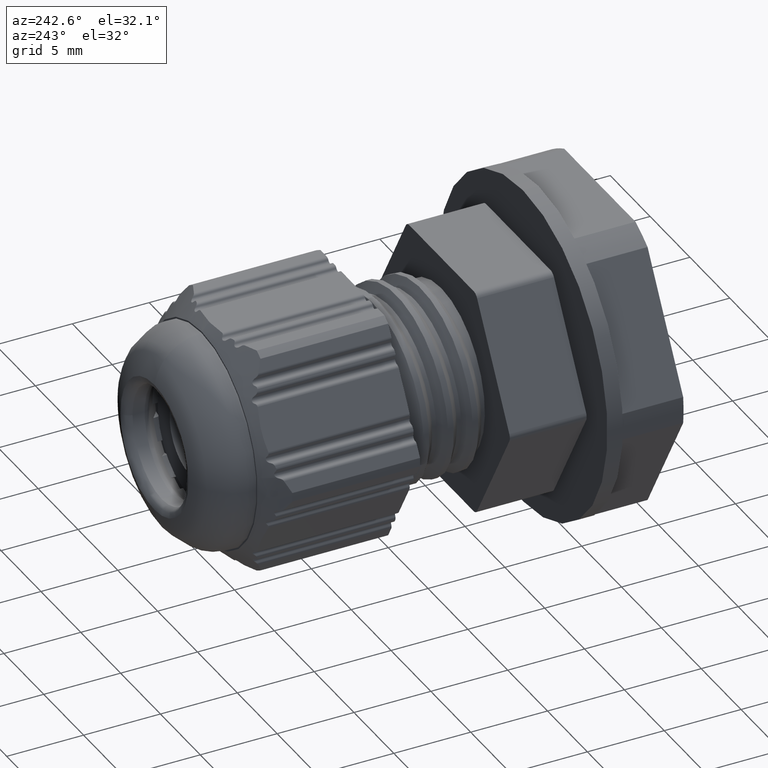
[diagram: clean part render]
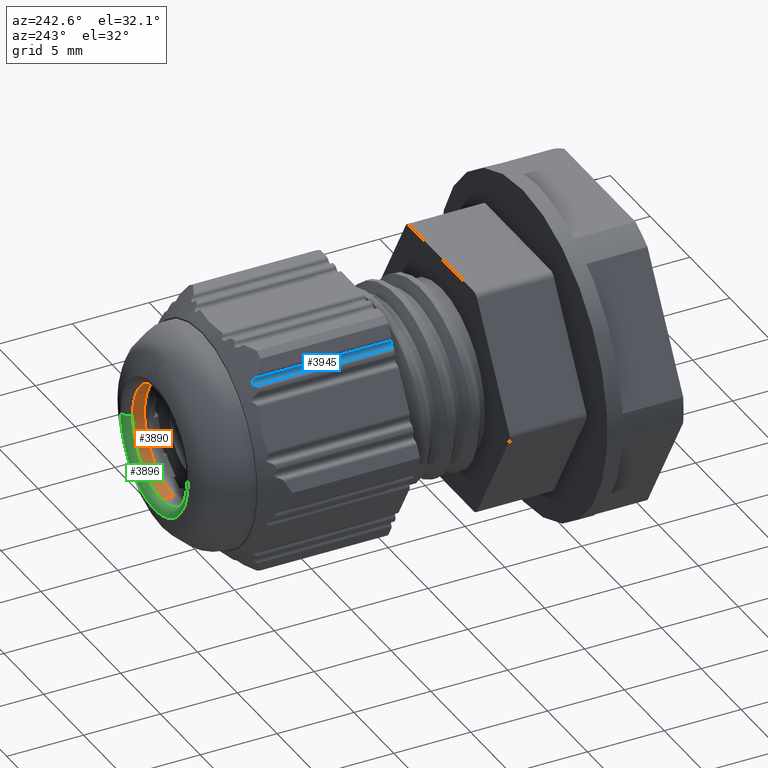
[diagram: same view with three faces highlighted in distinct colors, each labeled with its STEP entity id]
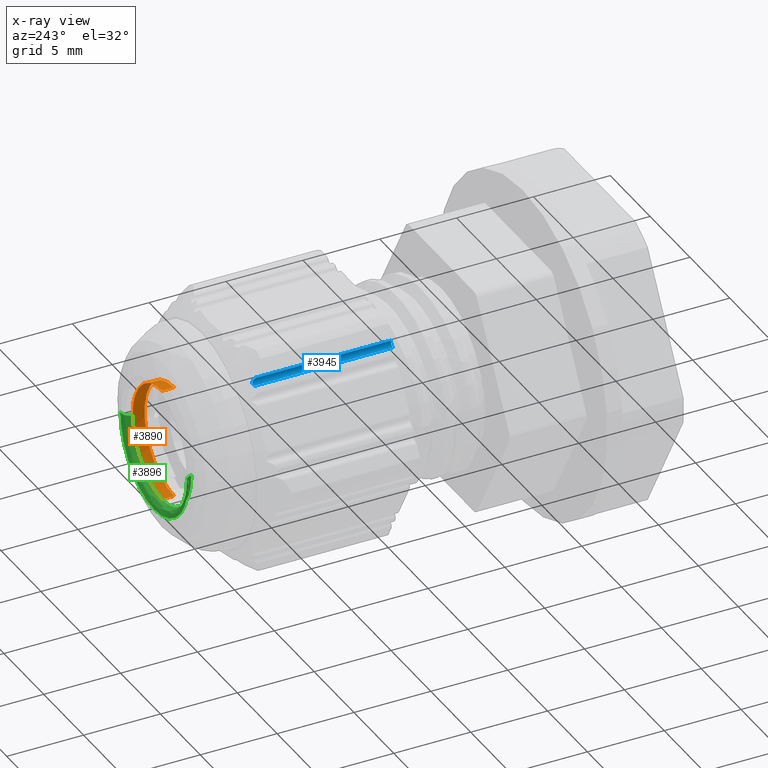
[diagram: x-ray of the same camera — body ghosted, the three highlighted faces saturated]
A machine part, auxiliary view with three faces highlighted in distinct colors.
The next image is the same camera in x-ray (body ghosted, the three faces saturated) — at least one of them is partly hidden behind the body in this view.
Their STEP definitions:

[orange] entity #3890 — the highlighted cylindrical surface (partial cylindrical patch) has radius 3.7 mm, axis along (0, 1, 0).
#240 = VECTOR ( 'NONE', #5946, 1000.000000000000000 ) ;
#245 = AXIS2_PLACEMENT_3D ( 'NONE', #5682, #5683, #5684 ) ;
#275 = CIRCLE ( 'NONE', #245, 3.699999999999999700 ) ;
#306 = VECTOR ( 'NONE', #6097, 1000.000000000000000 ) ;
#725 = CIRCLE ( 'NONE', #768, 3.700000000000000200 ) ;
#729 = AXIS2_PLACEMENT_3D ( 'NONE', #7890, #7891, #7892 ) ;
#734 = CIRCLE ( 'NONE', #729, 3.699999999999999700 ) ;
#768 = AXIS2_PLACEMENT_3D ( 'NONE', #7736, #7742, #7754 ) ;
#914 = EDGE_LOOP ( 'NONE', ( #4713, #4054, #4024, #4715, #4037 ) ) ;
#2809 = CARTESIAN_POINT ( 'NONE',  ( 4.531193156845206200E-016, 14.71534099267845400, -3.699999999999999700 ) ) ;
#2833 = CARTESIAN_POINT ( 'NONE',  ( 3.699999999999999700, 14.71534099267845400, 4.874094260606464300E-016 ) ) ;
#2855 = CARTESIAN_POINT ( 'NONE',  ( 2.421185368159272800E-016, 13.93340626348027700, 3.700000000000000200 ) ) ;
#2861 = CARTESIAN_POINT ( 'NONE',  ( 4.531193156845207200E-016, 13.93340626348027700, -3.700000000000000600 ) ) ;
#2869 = CARTESIAN_POINT ( 'NONE',  ( 0.0000000000000000000, 14.71534099267845400, 3.699999999999999700 ) ) ;
#3156 = EDGE_CURVE ( 'NONE', #10012, #10034, #275, .T. ) ;
#3205 = EDGE_CURVE ( 'NONE', #10049, #10012, #5973, .T. ) ;
#3233 = EDGE_CURVE ( 'NONE', #10046, #10076, #6086, .T. ) ;
#3666 = EDGE_CURVE ( 'NONE', #10046, #10049, #725, .T. ) ;
#3686 = EDGE_CURVE ( 'NONE', #10034, #10076, #734, .T. ) ;
#3890 = ADVANCED_FACE ( 'NONE', ( #8782 ), #8837, .F. ) ;
#4024 = ORIENTED_EDGE ( 'NONE', *, *, #3233, .T. ) ;
#4037 = ORIENTED_EDGE ( 'NONE', *, *, #3156, .F. ) ;
#4054 = ORIENTED_EDGE ( 'NONE', *, *, #3666, .F. ) ;
#4713 = ORIENTED_EDGE ( 'NONE', *, *, #3205, .F. ) ;
#4715 = ORIENTED_EDGE ( 'NONE', *, *, #3686, .F. ) ;
#4763 = AXIS2_PLACEMENT_3D ( 'NONE', #8833, #8830, #8832 ) ;
#5682 = CARTESIAN_POINT ( 'NONE',  ( 0.0000000000000000000, 14.71534099267845400, 0.0000000000000000000 ) ) ;
#5683 = DIRECTION ( 'NONE',  ( -0.0000000000000000000, -1.000000000000000000, -0.0000000000000000000 ) ) ;
#5684 = DIRECTION ( 'NONE',  ( 0.0000000000000000000, 0.0000000000000000000, 1.000000000000000000 ) ) ;
#5946 = DIRECTION ( 'NONE',  ( 0.0000000000000000000, 1.000000000000000000, 0.0000000000000000000 ) ) ;
#5960 = CARTESIAN_POINT ( 'NONE',  ( 4.531193156845206200E-016, 15.23340626348028000, -3.699999999999999700 ) ) ;
#5973 = LINE ( 'NONE', #5960, #240 ) ;
#6086 = LINE ( 'NONE', #6096, #306 ) ;
#6096 = CARTESIAN_POINT ( 'NONE',  ( 0.0000000000000000000, 15.23340626348028000, 3.699999999999999700 ) ) ;
#6097 = DIRECTION ( 'NONE',  ( 0.0000000000000000000, 1.000000000000000000, 0.0000000000000000000 ) ) ;
#7736 = CARTESIAN_POINT ( 'NONE',  ( 2.421185368159272800E-016, 13.93340626348027700, 0.0000000000000000000 ) ) ;
#7742 = DIRECTION ( 'NONE',  ( 0.0000000000000000000, 1.000000000000000000, 0.0000000000000000000 ) ) ;
#7754 = DIRECTION ( 'NONE',  ( 0.0000000000000000000, 0.0000000000000000000, 1.000000000000000000 ) ) ;
#7890 = CARTESIAN_POINT ( 'NONE',  ( 0.0000000000000000000, 14.71534099267845400, 0.0000000000000000000 ) ) ;
#7891 = DIRECTION ( 'NONE',  ( -0.0000000000000000000, -1.000000000000000000, -0.0000000000000000000 ) ) ;
#7892 = DIRECTION ( 'NONE',  ( 0.0000000000000000000, 0.0000000000000000000, 1.000000000000000000 ) ) ;
#8782 = FACE_OUTER_BOUND ( 'NONE', #914, .T. ) ;
#8830 = DIRECTION ( 'NONE',  ( 0.0000000000000000000, 1.000000000000000000, 0.0000000000000000000 ) ) ;
#8832 = DIRECTION ( 'NONE',  ( 0.0000000000000000000, 0.0000000000000000000, 1.000000000000000000 ) ) ;
#8833 = CARTESIAN_POINT ( 'NONE',  ( 0.0000000000000000000, 15.23340626348028000, 0.0000000000000000000 ) ) ;
#8837 = CYLINDRICAL_SURFACE ( 'NONE', #4763, 3.699999999999999700 ) ;
#10012 = VERTEX_POINT ( 'NONE', #2809 ) ;
#10034 = VERTEX_POINT ( 'NONE', #2833 ) ;
#10046 = VERTEX_POINT ( 'NONE', #2855 ) ;
#10049 = VERTEX_POINT ( 'NONE', #2861 ) ;
#10076 = VERTEX_POINT ( 'NONE', #2869 ) ;

[blue] entity #3945 — the highlighted cylindrical surface (edge-blend (fillet) strip) has radius 0.25 mm, axis along (-0, -1, -0).
#417 = CIRCLE ( 'NONE', #471, 0.2500000000000080500 ) ;
#471 = AXIS2_PLACEMENT_3D ( 'NONE', #6324, #6338, #6331 ) ;
#483 = VECTOR ( 'NONE', #6535, 1000.000000000000000 ) ;
#501 = VECTOR ( 'NONE', #6438, 1000.000000000000000 ) ;
#968 = ORIENTED_EDGE ( 'NONE', *, *, #3406, .F. ) ;
#969 = ORIENTED_EDGE ( 'NONE', *, *, #3462, .F. ) ;
#988 = ORIENTED_EDGE ( 'NONE', *, *, #3380, .F. ) ;
#1006 = ORIENTED_EDGE ( 'NONE', *, *, #3436, .F. ) ;
#2957 = CARTESIAN_POINT ( 'NONE',  ( -5.104828288130299500, 2.333406263480284300, 5.908178041042313900 ) ) ;
#3019 = CARTESIAN_POINT ( 'NONE',  ( -5.104828288130281800, 11.32534378832354300, 5.908178041042313900 ) ) ;
#3032 = CARTESIAN_POINT ( 'NONE',  ( -4.888321937184146600, 2.333406263480284300, 6.283178041042345000 ) ) ;
#3053 = CARTESIAN_POINT ( 'NONE',  ( -4.888321937184122700, 11.17262629811297400, 6.283178041042303300 ) ) ;
#3380 = EDGE_CURVE ( 'NONE', #10200, #10208, #10451, .T. ) ;
#3406 = EDGE_CURVE ( 'NONE', #10244, #10194, #417, .T. ) ;
#3436 = EDGE_CURVE ( 'NONE', #10194, #10200, #6441, .T. ) ;
#3462 = EDGE_CURVE ( 'NONE', #10208, #10244, #6518, .T. ) ;
#3945 = ADVANCED_FACE ( 'NONE', ( #9085 ), #9115, .F. ) ;
#4812 = AXIS2_PLACEMENT_3D ( 'NONE', #9076, #9080, #9084 ) ;
#5159 = CARTESIAN_POINT ( 'NONE',  ( -5.015164835770495000, 11.37522785605916400, 5.919453885959338600 ) ) ;
#5160 = CARTESIAN_POINT ( 'NONE',  ( -4.888321937184122700, 11.17262629811297400, 6.283178041042303300 ) ) ;
#5167 = CARTESIAN_POINT ( 'NONE',  ( -4.858859260209106500, 11.24257976520255700, 6.217482692760675000 ) ) ;
#5169 = CARTESIAN_POINT ( 'NONE',  ( -5.104828288130281800, 11.32534378832354300, 5.908178041042313900 ) ) ;
#5170 = CARTESIAN_POINT ( 'NONE',  ( -4.929835564664585900, 11.38913042209421200, 5.972688678427577000 ) ) ;
#5172 = CARTESIAN_POINT ( 'NONE',  ( -4.895543068344126800, 11.37890385609051500, 6.013953315298242500 ) ) ;
#5173 = CARTESIAN_POINT ( 'NONE',  ( -4.857989492748719100, 11.33732268958365100, 6.097583620247370100 ) ) ;
#5174 = CARTESIAN_POINT ( 'NONE',  ( -4.852477293606042100, 11.30758084316517500, 6.139826475045090600 ) ) ;
#5175 = CARTESIAN_POINT ( 'NONE',  ( -4.870323258620201700, 11.20828349004618100, 6.252003415300485800 ) ) ;
#5176 = CARTESIAN_POINT ( 'NONE',  ( -5.062214593285731600, 11.35320416925625900, 5.908178041042310400 ) ) ;
#6324 = CARTESIAN_POINT ( 'NONE',  ( -5.104828288130250700, 2.333406263480284300, 6.158178041042321900 ) ) ;
#6331 = DIRECTION ( 'NONE',  ( 6.938893903907005100E-015, 0.0000000000000000000, -1.000000000000000000 ) ) ;
#6338 = DIRECTION ( 'NONE',  ( 0.0000000000000000000, 1.000000000000000000, 0.0000000000000000000 ) ) ;
#6435 = CARTESIAN_POINT ( 'NONE',  ( -5.104828288130294200, 15.21634099267845200, 5.908178041042313000 ) ) ;
#6438 = DIRECTION ( 'NONE',  ( 0.0000000000000000000, 1.000000000000000000, 0.0000000000000000000 ) ) ;
#6441 = LINE ( 'NONE', #6435, #501 ) ;
#6518 = LINE ( 'NONE', #6554, #483 ) ;
#6535 = DIRECTION ( 'NONE',  ( -0.0000000000000000000, -1.000000000000000000, -0.0000000000000000000 ) ) ;
#6554 = CARTESIAN_POINT ( 'NONE',  ( -4.888321937184121800, 15.21634099267845200, 6.283178041042304200 ) ) ;
#9076 = CARTESIAN_POINT ( 'NONE',  ( -5.104828288130250700, 15.21634099267845200, 6.158178041042321900 ) ) ;
#9080 = DIRECTION ( 'NONE',  ( -0.0000000000000000000, -1.000000000000000000, -0.0000000000000000000 ) ) ;
#9084 = DIRECTION ( 'NONE',  ( 0.0000000000000000000, 0.0000000000000000000, -1.000000000000000000 ) ) ;
#9085 = FACE_OUTER_BOUND ( 'NONE', #9939, .T. ) ;
#9115 = CYLINDRICAL_SURFACE ( 'NONE', #4812, 0.2500000000000080500 ) ;
#9939 = EDGE_LOOP ( 'NONE', ( #969, #988, #1006, #968 ) ) ;
#10194 = VERTEX_POINT ( 'NONE', #2957 ) ;
#10200 = VERTEX_POINT ( 'NONE', #3019 ) ;
#10208 = VERTEX_POINT ( 'NONE', #3053 ) ;
#10244 = VERTEX_POINT ( 'NONE', #3032 ) ;
#10451 = B_SPLINE_CURVE_WITH_KNOTS ( 'NONE', 3,
 ( #5169, #5176, #5159, #5170, #5172, #5173, #5174, #5167, #5175, #5160 ),
 .UNSPECIFIED., .F., .F.,
 ( 4, 2, 2, 2, 4 ),
 ( 1.561251128379126400E-017, 0.0001511409126932738400, 0.0003022818253865320700, 0.0004534227380797903000, 0.0006045636507730485300 ),
 .UNSPECIFIED. ) ;

[green] entity #3896 — the highlighted face is a freeform B-spline surface patch.
#3 =( BOUNDED_SURFACE ( )  B_SPLINE_SURFACE ( 3, 3, ( 
 ( #8842, #8855, #8847, #8827 ),
 ( #8828, #8848, #8849, #8812 ),
 ( #8859, #8860, #8856, #8813 ),
 ( #8814, #8818, #8816, #8817 ) ),
 .UNSPECIFIED., .F., .F., .F. ) 
 B_SPLINE_SURFACE_WITH_KNOTS ( ( 4, 4 ),
 ( 4, 4 ),
 ( 0.0000000000000000000, 1.000000000000000000 ),
 ( 0.0000000000000000000, 1.000000000000000000 ),
 .UNSPECIFIED. ) 
 GEOMETRIC_REPRESENTATION_ITEM ( )  RATIONAL_B_SPLINE_SURFACE ( (
 ( 1.000000000000000000, 0.3333333333333334300, 0.3333333333333334300, 1.000000000000000000),
 ( 0.7755499720473825200, 0.2585166573491276000, 0.2585166573491276000, 0.7755499720473825200),
 ( 0.7755499720473825200, 0.2585166573491276000, 0.2585166573491276000, 0.7755499720473825200),
 ( 1.000000000000000000, 0.3333333333333334300, 0.3333333333333334300, 1.000000000000000000) ) ) 
 REPRESENTATION_ITEM ( '' )  SURFACE ( )  );
#196 = CIRCLE ( 'NONE', #197, 3.699999999999999700 ) ;
#197 = AXIS2_PLACEMENT_3D ( 'NONE', #5656, #5643, #5655 ) ;
#214 = AXIS2_PLACEMENT_3D ( 'NONE', #5653, #5652, #5654 ) ;
#222 = AXIS2_PLACEMENT_3D ( 'NONE', #4692, #4693, #4672 ) ;
#228 = CIRCLE ( 'NONE', #214, 0.4999999999999995600 ) ;
#229 = CIRCLE ( 'NONE', #222, 0.4999999999999995600 ) ;
#242 = CIRCLE ( 'NONE', #272, 4.259999999999999800 ) ;
#245 = AXIS2_PLACEMENT_3D ( 'NONE', #5682, #5683, #5684 ) ;
#254 = AXIS2_PLACEMENT_3D ( 'NONE', #5693, #5694, #5703 ) ;
#260 = CIRCLE ( 'NONE', #254, 4.259999999999999800 ) ;
#272 = AXIS2_PLACEMENT_3D ( 'NONE', #5850, #5852, #5868 ) ;
#275 = CIRCLE ( 'NONE', #245, 3.699999999999999700 ) ;
#2808 = CARTESIAN_POINT ( 'NONE',  ( -3.699999999999999700, 14.71534099267845400, 1.363915385025957400E-032 ) ) ;
#2809 = CARTESIAN_POINT ( 'NONE',  ( 4.531193156845206200E-016, 14.71534099267845400, -3.699999999999999700 ) ) ;
#2833 = CARTESIAN_POINT ( 'NONE',  ( 3.699999999999999700, 14.71534099267845400, 4.874094260606464300E-016 ) ) ;
#2836 = CARTESIAN_POINT ( 'NONE',  ( 4.260000000000008700, 15.21172793851808600, 5.216995364367735300E-016 ) ) ;
#2852 = CARTESIAN_POINT ( 'NONE',  ( 4.328130666425425800E-016, 15.21172793851808800, -4.259999999999999800 ) ) ;
#2884 = CARTESIAN_POINT ( 'NONE',  ( -4.260000000000000700, 15.21172793851809000, 2.727830770051913100E-032 ) ) ;
#3131 = EDGE_CURVE ( 'NONE', #10005, #10054, #229, .T. ) ;
#3144 = EDGE_CURVE ( 'NONE', #10034, #10027, #228, .T. ) ;
#3145 = EDGE_CURVE ( 'NONE', #10005, #10012, #196, .T. ) ;
#3156 = EDGE_CURVE ( 'NONE', #10012, #10034, #275, .T. ) ;
#3161 = EDGE_CURVE ( 'NONE', #10057, #10054, #260, .T. ) ;
#3184 = EDGE_CURVE ( 'NONE', #10027, #10057, #242, .T. ) ;
#3896 = ADVANCED_FACE ( 'NONE', ( #8825 ), #3, .T. ) ;
#4330 = ORIENTED_EDGE ( 'NONE', *, *, #3145, .T. ) ;
#4338 = ORIENTED_EDGE ( 'NONE', *, *, #3156, .T. ) ;
#4339 = ORIENTED_EDGE ( 'NONE', *, *, #3144, .T. ) ;
#4340 = ORIENTED_EDGE ( 'NONE', *, *, #3184, .T. ) ;
#4344 = ORIENTED_EDGE ( 'NONE', *, *, #3161, .T. ) ;
#4346 = ORIENTED_EDGE ( 'NONE', *, *, #3131, .F. ) ;
#4672 = DIRECTION ( 'NONE',  ( -1.000000000000000000, 0.0000000000000000000, -7.400507694445020100E-048 ) ) ;
#4692 = CARTESIAN_POINT ( 'NONE',  ( -4.200000000000001100, 14.71534099267845600, -3.108213231666909300E-047 ) ) ;
#4693 = DIRECTION ( 'NONE',  ( -2.028287294033081100E-047, -5.495371691207191400E-032, 1.000000000000000000 ) ) ;
#5643 = DIRECTION ( 'NONE',  ( -0.0000000000000000000, -1.000000000000000000, -0.0000000000000000000 ) ) ;
#5652 = DIRECTION ( 'NONE',  ( 1.224646799147353200E-016, 2.624529053016964400E-032, -1.000000000000000000 ) ) ;
#5653 = CARTESIAN_POINT ( 'NONE',  ( 4.200000000000002000, 14.71534099267845400, 5.143516556418885900E-016 ) ) ;
#5654 = DIRECTION ( 'NONE',  ( 1.000000000000000000, 0.0000000000000000000, 1.224646799147353500E-016 ) ) ;
#5655 = DIRECTION ( 'NONE',  ( 0.0000000000000000000, 0.0000000000000000000, 1.000000000000000000 ) ) ;
#5656 = CARTESIAN_POINT ( 'NONE',  ( 0.0000000000000000000, 14.71534099267845400, 0.0000000000000000000 ) ) ;
#5682 = CARTESIAN_POINT ( 'NONE',  ( 0.0000000000000000000, 14.71534099267845400, 0.0000000000000000000 ) ) ;
#5683 = DIRECTION ( 'NONE',  ( -0.0000000000000000000, -1.000000000000000000, -0.0000000000000000000 ) ) ;
#5684 = DIRECTION ( 'NONE',  ( 0.0000000000000000000, 0.0000000000000000000, 1.000000000000000000 ) ) ;
#5693 = CARTESIAN_POINT ( 'NONE',  ( 3.429237238039417500E-016, 15.21172793851808800, 2.727830770051924600E-032 ) ) ;
#5694 = DIRECTION ( 'NONE',  ( 2.344220913482172600E-016, 1.000000000000000000, 5.495371691207191400E-032 ) ) ;
#5703 = DIRECTION ( 'NONE',  ( -1.000000000000000000, 4.072120835626307800E-016, -1.254819112719340700E-047 ) ) ;
#5850 = CARTESIAN_POINT ( 'NONE',  ( 3.429237238039417500E-016, 15.21172793851808800, 2.727830770051924600E-032 ) ) ;
#5852 = DIRECTION ( 'NONE',  ( 2.344220913482172600E-016, 1.000000000000000000, 5.495371691207191400E-032 ) ) ;
#5868 = DIRECTION ( 'NONE',  ( -1.000000000000000000, 4.072120835626307800E-016, -1.254819112719340700E-047 ) ) ;
#8812 = CARTESIAN_POINT ( 'NONE',  ( -3.700000000000001100, 15.03697574836856400, -9.062386313690412400E-016 ) ) ;
#8813 = CARTESIAN_POINT ( 'NONE',  ( -3.940689411894227500, 15.25032410920090500, -9.651905349420261300E-016 ) ) ;
#8814 = CARTESIAN_POINT ( 'NONE',  ( 4.260000000000008700, 15.21172793851808800, 5.216995364367734300E-016 ) ) ;
#8816 = CARTESIAN_POINT ( 'NONE',  ( -4.260000000000006000, 15.21172793851808800, -8.520000000000013800 ) ) ;
#8817 = CARTESIAN_POINT ( 'NONE',  ( -4.260000000000007800, 15.21172793851809000, -1.043399072873546700E-015 ) ) ;
#8818 = CARTESIAN_POINT ( 'NONE',  ( 4.260000000000009600, 15.21172793851808800, -8.520000000000013800 ) ) ;
#8825 = FACE_OUTER_BOUND ( 'NONE', #9863, .T. ) ;
#8827 = CARTESIAN_POINT ( 'NONE',  ( -3.700000000000002400, 14.71534099267845400, -9.062386313690418300E-016 ) ) ;
#8828 = CARTESIAN_POINT ( 'NONE',  ( 3.700000000000001500, 15.03697574836856000, 4.531193156845208200E-016 ) ) ;
#8842 = CARTESIAN_POINT ( 'NONE',  ( 3.700000000000002800, 14.71534099267845300, 4.531193156845209200E-016 ) ) ;
#8847 = CARTESIAN_POINT ( 'NONE',  ( -3.700000000000000600, 14.71534099267845300, -7.400000000000004800 ) ) ;
#8848 = CARTESIAN_POINT ( 'NONE',  ( 3.700000000000002400, 15.03697574836856000, -7.399999999999999500 ) ) ;
#8849 = CARTESIAN_POINT ( 'NONE',  ( -3.699999999999999300, 15.03697574836856200, -7.400000000000002100 ) ) ;
#8855 = CARTESIAN_POINT ( 'NONE',  ( 3.700000000000003700, 14.71534099267845300, -7.400000000000002100 ) ) ;
#8856 = CARTESIAN_POINT ( 'NONE',  ( -3.940689411894226200, 15.25032410920090500, -7.881378823788455900 ) ) ;
#8859 = CARTESIAN_POINT ( 'NONE',  ( 3.940689411894228400, 15.25032410920090300, 4.825952674710130700E-016 ) ) ;
#8860 = CARTESIAN_POINT ( 'NONE',  ( 3.940689411894229300, 15.25032410920090500, -7.881378823788455900 ) ) ;
#9863 = EDGE_LOOP ( 'NONE', ( #4338, #4339, #4340, #4344, #4346, #4330 ) ) ;
#10005 = VERTEX_POINT ( 'NONE', #2808 ) ;
#10012 = VERTEX_POINT ( 'NONE', #2809 ) ;
#10027 = VERTEX_POINT ( 'NONE', #2836 ) ;
#10034 = VERTEX_POINT ( 'NONE', #2833 ) ;
#10054 = VERTEX_POINT ( 'NONE', #2884 ) ;
#10057 = VERTEX_POINT ( 'NONE', #2852 ) ;